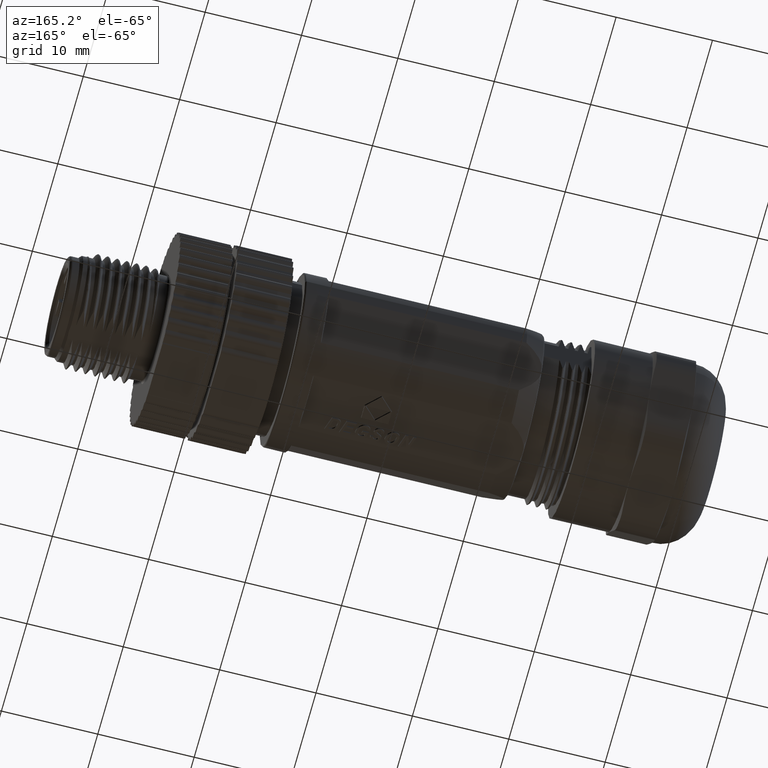
[diagram: clean part render]
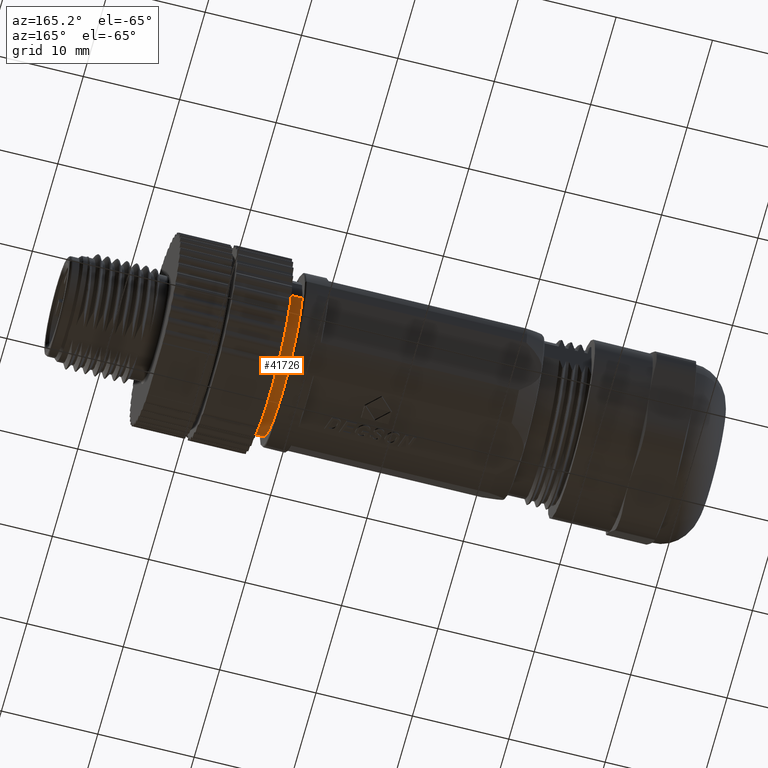
[diagram: same view with one face highlighted and labeled with its STEP entity id]
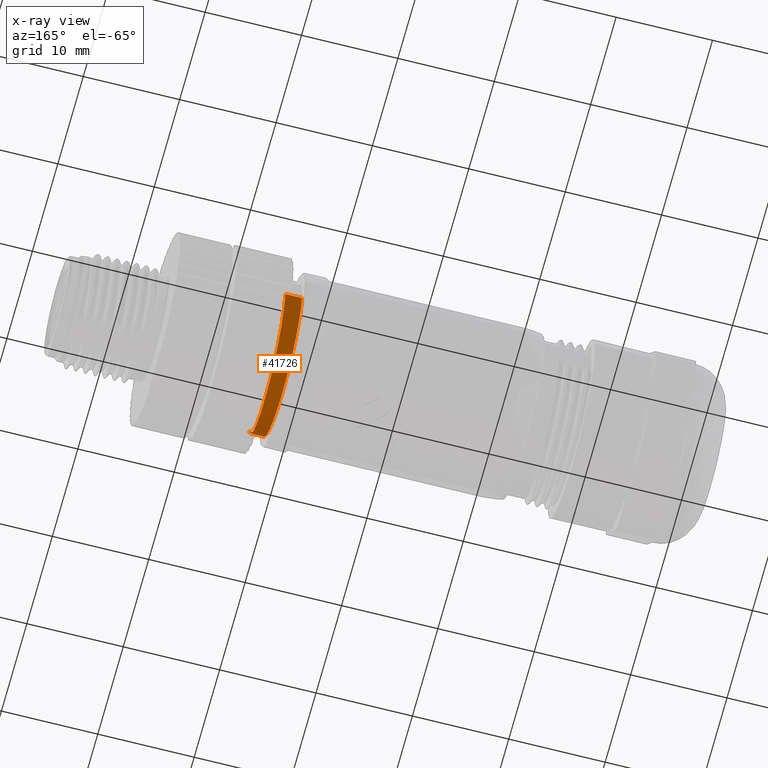
[diagram: x-ray of the same camera — body ghosted, the highlighted face saturated]
A machine part, auxiliary view. The second image highlights one B-rep face of the part: STEP entity #41726.
The next image is the same camera in x-ray: the body ghosted, the highlighted face saturated — about 0% of this face is hidden behind the body in this view.
In plain terms, the highlighted cylindrical surface (partial cylindrical patch) has radius 7.95 mm, axis along (-1, 0, 0).
Its self-contained STEP definition (entity closure, byte-faithful):
#23758=CARTESIAN_POINT('',(1.421568741490E0,0.E0,0.E0));
#23759=DIRECTION('',(1.E0,0.E0,0.E0));
#23760=DIRECTION('',(0.E0,-9.811320754717E-1,-1.933386936974E-1));
#23761=AXIS2_PLACEMENT_3D('',#23758,#23759,#23760);
#23936=CARTESIAN_POINT('',(2.819031341468E0,-7.8E0,-1.537042614894E0));
#24520=DIRECTION('',(1.E0,8.516571981366E-14,3.511497029630E-14));
#24521=VECTOR('',#24520,1.397462599978E0);
#24522=CARTESIAN_POINT('',(1.421568741490E0,-7.8E0,-1.537042614894E0));
#24523=LINE('',#24522,#24521);
#24524=CARTESIAN_POINT('',(2.819031593370E0,-6.065296417321E0,
-5.139514663656E0));
#24525=CARTESIAN_POINT('',(2.826975693307E0,-5.808863848647E0,
-5.442141301419E0));
#24526=CARTESIAN_POINT('',(2.842858286172E0,-5.250436576144E0,
-6.009203151248E0));
#24527=CARTESIAN_POINT('',(2.866723225245E0,-4.293919833334E0,
-6.726027938780E0));
#24528=CARTESIAN_POINT('',(2.890592380593E0,-3.240830262323E0,
-7.292379643209E0));
#24529=CARTESIAN_POINT('',(2.914570328304E0,-2.109575214808E0,
-7.695925524189E0));
#24530=CARTESIAN_POINT('',(2.938278716567E0,-9.439565991086E-1,
-7.923349304306E0));
#24531=CARTESIAN_POINT('',(2.962018495851E0,2.439912317343E-1,
-7.975901726860E0));
#24532=CARTESIAN_POINT('',(2.985807701443E0,1.429025682016E0,
-7.850663062101E0));
#24533=CARTESIAN_POINT('',(3.009593365557E0,2.582004537428E0,
-7.550355592971E0));
#24534=CARTESIAN_POINT('',(3.033380511026E0,3.677508191935E0,
-7.081766648778E0));
#24535=CARTESIAN_POINT('',(3.057228401967E0,4.693652780843E0,
-6.453647151611E0));
#24536=CARTESIAN_POINT('',(3.081121526599E0,5.605794202076E0,
-5.678811485197E0));
#24537=CARTESIAN_POINT('',(3.104786344811E0,6.385140505672E0,
-4.785605869681E0));
#24538=CARTESIAN_POINT('',(3.128595033653E0,7.027233749299E0,
-3.780636102359E0));
#24539=CARTESIAN_POINT('',(3.152345580635E0,7.511128523157E0,
-2.693903493315E0));
#24540=CARTESIAN_POINT('',(3.168229499163E0,7.723208148950E0,
-1.926732283084E0));
#24541=CARTESIAN_POINT('',(3.176187778989E0,7.799999157708E0,
-1.537042461451E0));
#24543=DIRECTION('',(-9.999999999999E-1,4.794997658802E-7,-7.731894672675E-8));
#24544=VECTOR('',#24543,1.754619037499E0);
#24545=CARTESIAN_POINT('',(3.176187778989E0,7.799999157708E0,
-1.537042461451E0));
#24546=LINE('',#24545,#24544);
#24547=CARTESIAN_POINT('',(2.819031341469E0,0.E0,0.E0));
#24548=DIRECTION('',(-1.E0,0.E0,0.E0));
#24549=DIRECTION('',(0.E0,-7.629337528123E-1,-6.464766730670E-1));
#24550=AXIS2_PLACEMENT_3D('',#24547,#24548,#24549);
#37214=CARTESIAN_POINT('',(1.421568741490E0,-7.8E0,-1.537042614894E0));
#37215=VERTEX_POINT('',#37214);
#37216=CARTESIAN_POINT('',(1.421568741490E0,7.8E0,-1.537042614894E0));
#37217=VERTEX_POINT('',#37216);
#37397=VERTEX_POINT('',#23936);
#37420=CARTESIAN_POINT('',(3.176187778989E0,7.799999157708E0,
-1.537042461451E0));
#37421=VERTEX_POINT('',#37420);
#37444=CARTESIAN_POINT('',(2.819031341469E0,-6.065323334857E0,
-5.139489550882E0));
#37445=VERTEX_POINT('',#37444);
#41713=CARTESIAN_POINT('',(7.541568741490E0,0.E0,0.E0));
#41714=DIRECTION('',(-1.E0,0.E0,0.E0));
#41715=DIRECTION('',(0.E0,-1.E0,0.E0));
#41716=AXIS2_PLACEMENT_3D('',#41713,#41714,#41715);
#41717=CYLINDRICAL_SURFACE('',#41716,7.95E0);
#41718=ORIENTED_EDGE('',*,*,#40458,.T.);
#41720=ORIENTED_EDGE('',*,*,#41719,.F.);
#41721=ORIENTED_EDGE('',*,*,#41705,.T.);
#41722=ORIENTED_EDGE('',*,*,#40695,.T.);
#41723=ORIENTED_EDGE('',*,*,#40356,.F.);
#41724=EDGE_LOOP('',(#41718,#41720,#41721,#41722,#41723));
#41725=FACE_OUTER_BOUND('',#41724,.F.);
#41726=ADVANCED_FACE('',(#41725),#41717,.T.);
#23762=CIRCLE('',#23761,7.95E0);
#24542=B_SPLINE_CURVE_WITH_KNOTS('',3,(#24524,#24525,#24526,#24527,#24528,
#24529,#24530,#24531,#24532,#24533,#24534,#24535,#24536,#24537,#24538,#24539,
#24540,#24541),.UNSPECIFIED.,.F.,.F.,(4,1,1,1,1,1,1,1,1,1,1,1,1,1,1,4),(0.E0,
6.666666666667E-2,1.333333333333E-1,2.E-1,2.666666666667E-1,3.333333333333E-1,
4.E-1,4.666666666667E-1,5.333333333333E-1,6.E-1,6.666666666667E-1,
7.333333333333E-1,8.E-1,8.666666666667E-1,9.333333333333E-1,1.E0),
.UNSPECIFIED.);
#24551=CIRCLE('',#24550,7.95E0);
#40356=EDGE_CURVE('',#37215,#37217,#23762,.T.);
#40458=EDGE_CURVE('',#37215,#37397,#24523,.T.);
#40695=EDGE_CURVE('',#37421,#37217,#24546,.T.);
#41705=EDGE_CURVE('',#37445,#37421,#24542,.T.);
#41719=EDGE_CURVE('',#37445,#37397,#24551,.T.);